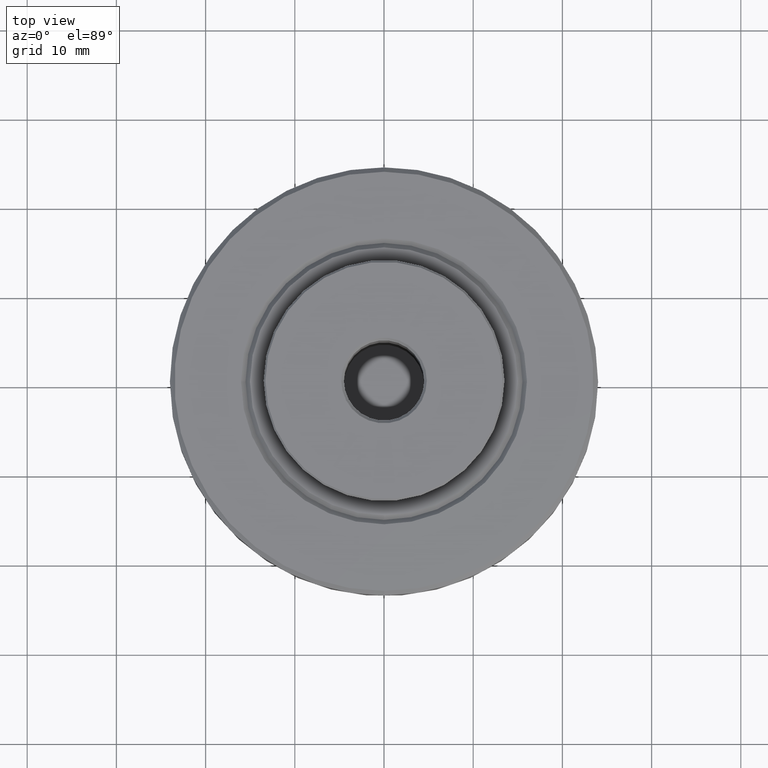
[diagram: clean part render]
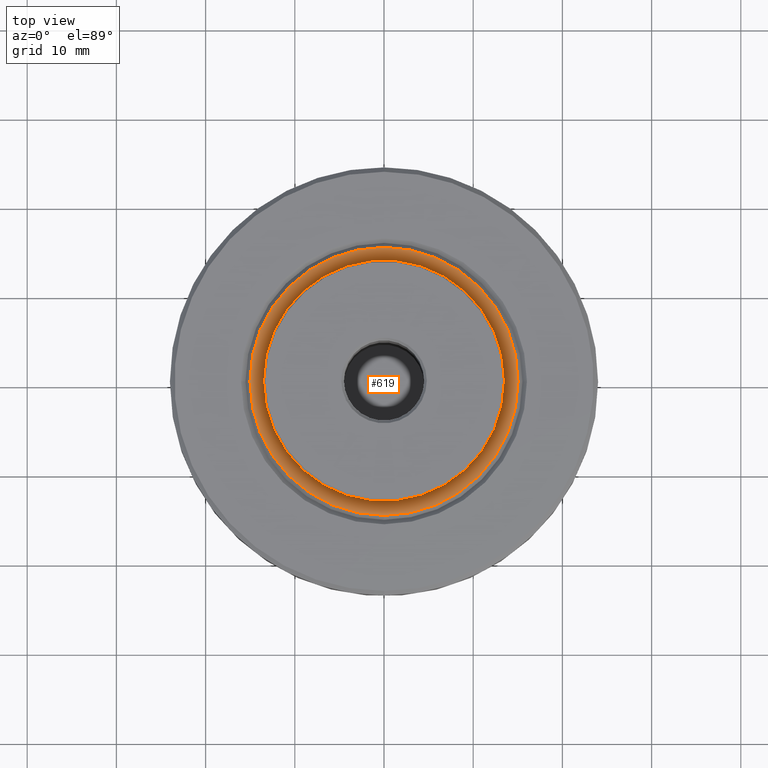
[diagram: same view with one face highlighted and labeled with its STEP entity id]
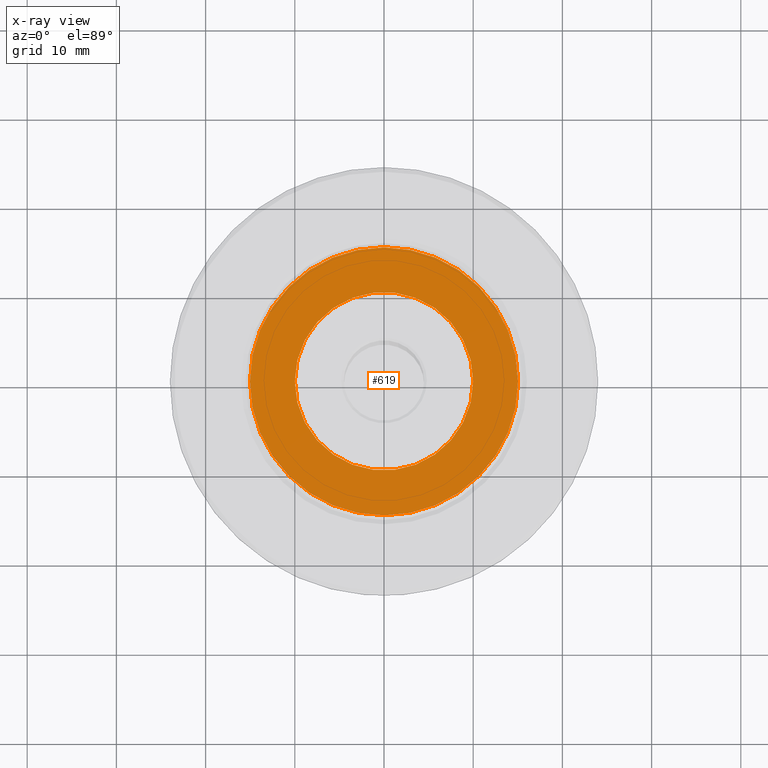
[diagram: x-ray of the same camera — body ghosted, the highlighted face saturated]
A machine part, top view. The second image highlights one B-rep face of the part: STEP entity #619.
The next image is the same camera in x-ray: the body ghosted, the highlighted face saturated — about 0% of this face is hidden behind the body in this view.
In plain terms, the highlighted planar face has unit normal (0, 0, -1).
Its self-contained STEP definition (entity closure, byte-faithful):
#78 = EDGE_CURVE ( 'NONE', #1659, #1036, #655, .T. ) ;
#121 = DIRECTION ( 'NONE',  ( -0.0000000000000000000, -0.0000000000000000000, 1.000000000000000000 ) ) ;
#164 = AXIS2_PLACEMENT_3D ( 'NONE', #1410, #1263, #518 ) ;
#217 = ORIENTED_EDGE ( 'NONE', *, *, #544, .F. ) ;
#219 = CARTESIAN_POINT ( 'NONE',  ( 0.0000000000000000000, 2.803974544636418300E-030, 12.43848561500005100 ) ) ;
#295 = CARTESIAN_POINT ( 'NONE',  ( 0.0000000000000000000, 2.803974544636418300E-030, 12.43848561500005100 ) ) ;
#361 = EDGE_CURVE ( 'NONE', #1378, #1726, #723, .T. ) ;
#362 = EDGE_LOOP ( 'NONE', ( #520, #217 ) ) ;
#396 = CIRCLE ( 'NONE', #1589, 9.999999999999998200 ) ;
#433 = AXIS2_PLACEMENT_3D ( 'NONE', #590, #1368, #1930 ) ;
#461 = PLANE ( 'NONE',  #433 ) ;
#492 = CARTESIAN_POINT ( 'NONE',  ( 0.0000000000000000000, 15.02499999999995200, 12.43848561500005100 ) ) ;
#518 = DIRECTION ( 'NONE',  ( -1.000000000000000000, 0.0000000000000000000, 0.0000000000000000000 ) ) ;
#520 = ORIENTED_EDGE ( 'NONE', *, *, #361, .F. ) ;
#544 = EDGE_CURVE ( 'NONE', #1726, #1378, #396, .T. ) ;
#583 = EDGE_CURVE ( 'NONE', #1036, #1659, #1562, .T. ) ;
#590 = CARTESIAN_POINT ( 'NONE',  ( 15.20529999999999900, -15.20529999999999900, 12.43848561500000100 ) ) ;
#619 = ADVANCED_FACE ( 'NONE', ( #1871, #1201 ), #461, .F. ) ;
#655 = CIRCLE ( 'NONE', #1456, 15.02499999999995200 ) ;
#723 = CIRCLE ( 'NONE', #164, 9.999999999999998200 ) ;
#857 = ORIENTED_EDGE ( 'NONE', *, *, #583, .T. ) ;
#906 = DIRECTION ( 'NONE',  ( 0.0000000000000000000, 1.000000000000000000, 0.0000000000000000000 ) ) ;
#1036 = VERTEX_POINT ( 'NONE', #492 ) ;
#1108 = DIRECTION ( 'NONE',  ( 0.0000000000000000000, 1.000000000000000000, 0.0000000000000000000 ) ) ;
#1159 = DIRECTION ( 'NONE',  ( -1.000000000000000000, 0.0000000000000000000, 0.0000000000000000000 ) ) ;
#1188 = EDGE_LOOP ( 'NONE', ( #857, #1254 ) ) ;
#1201 = FACE_BOUND ( 'NONE', #362, .T. ) ;
#1254 = ORIENTED_EDGE ( 'NONE', *, *, #78, .T. ) ;
#1263 = DIRECTION ( 'NONE',  ( -0.0000000000000000000, -0.0000000000000000000, 1.000000000000000000 ) ) ;
#1368 = DIRECTION ( 'NONE',  ( 0.0000000000000000000, 0.0000000000000000000, -1.000000000000000000 ) ) ;
#1378 = VERTEX_POINT ( 'NONE', #1816 ) ;
#1397 = DIRECTION ( 'NONE',  ( -0.0000000000000000000, 5.772790269473567500E-017, 1.000000000000000000 ) ) ;
#1410 = CARTESIAN_POINT ( 'NONE',  ( 0.0000000000000000000, 0.0000000000000000000, 12.43848561500000100 ) ) ;
#1456 = AXIS2_PLACEMENT_3D ( 'NONE', #295, #1397, #906 ) ;
#1478 = CARTESIAN_POINT ( 'NONE',  ( -9.999999999999998200, 1.224646799147353100E-015, 12.43848561500000100 ) ) ;
#1562 = CIRCLE ( 'NONE', #1898, 15.02499999999995200 ) ;
#1564 = CARTESIAN_POINT ( 'NONE',  ( 1.870647985697579200E-015, -15.02499999999995200, 12.43848561500005100 ) ) ;
#1589 = AXIS2_PLACEMENT_3D ( 'NONE', #1617, #121, #1159 ) ;
#1617 = CARTESIAN_POINT ( 'NONE',  ( 0.0000000000000000000, 0.0000000000000000000, 12.43848561500000100 ) ) ;
#1659 = VERTEX_POINT ( 'NONE', #1564 ) ;
#1726 = VERTEX_POINT ( 'NONE', #1478 ) ;
#1816 = CARTESIAN_POINT ( 'NONE',  ( 9.999999999999998200, 0.0000000000000000000, 12.43848561500000100 ) ) ;
#1832 = DIRECTION ( 'NONE',  ( -0.0000000000000000000, 5.772790269473567500E-017, 1.000000000000000000 ) ) ;
#1871 = FACE_OUTER_BOUND ( 'NONE', #1188, .T. ) ;
#1898 = AXIS2_PLACEMENT_3D ( 'NONE', #219, #1832, #1108 ) ;
#1930 = DIRECTION ( 'NONE',  ( -1.000000000000000000, 0.0000000000000000000, 0.0000000000000000000 ) ) ;